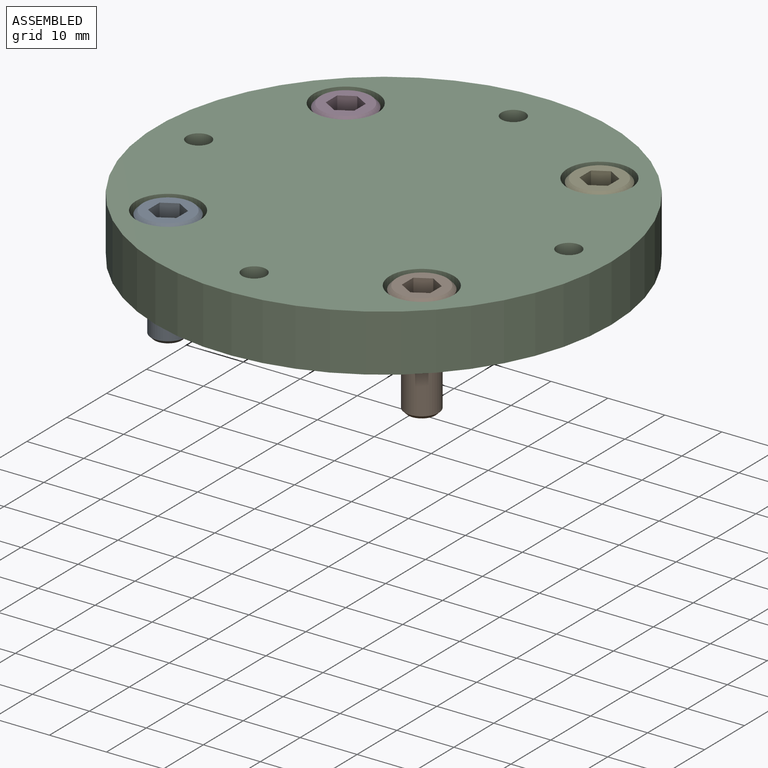
[diagram: assembled view]
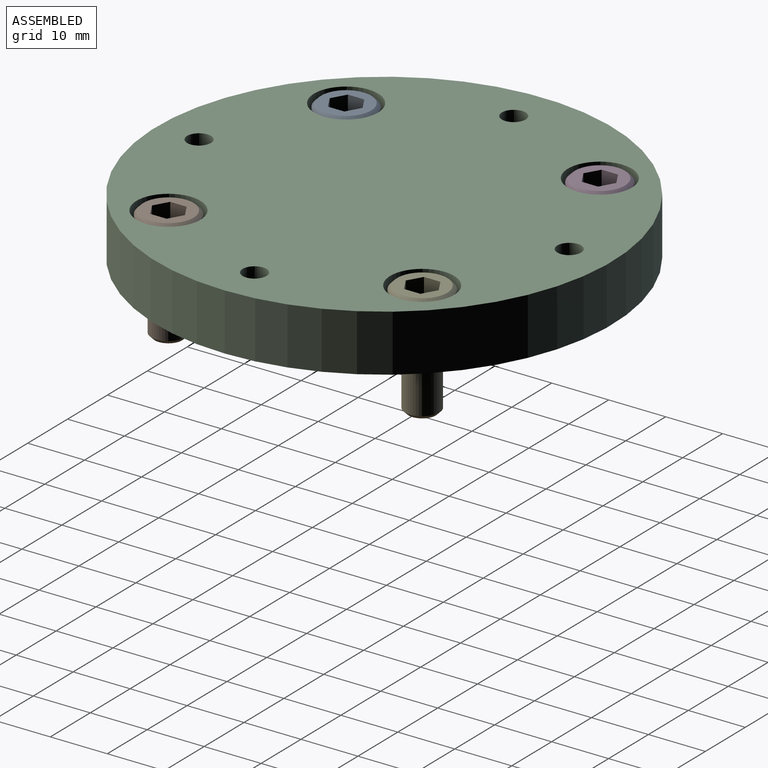
[diagram: assembled view, second angle]
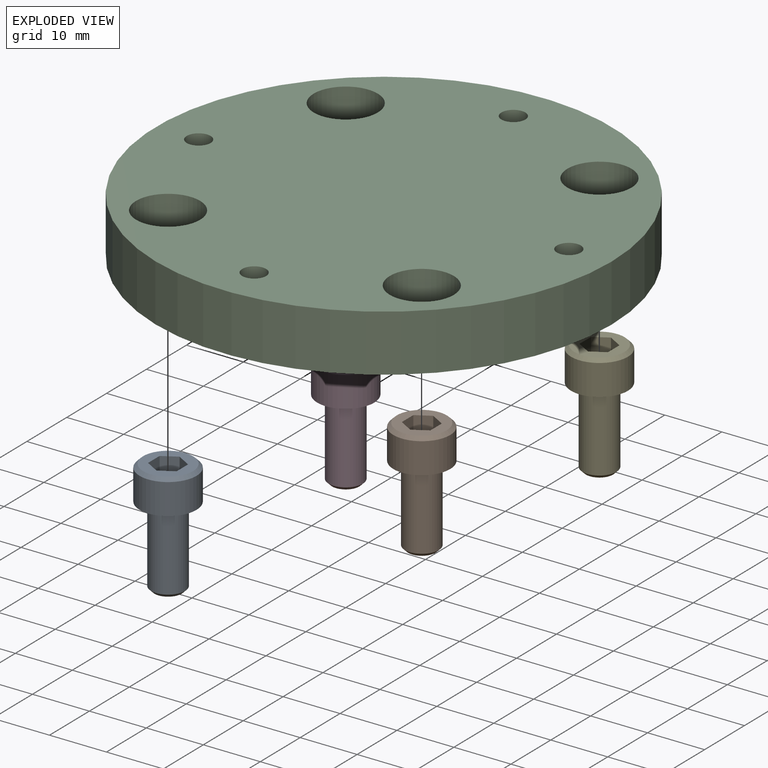
[diagram: exploded view]
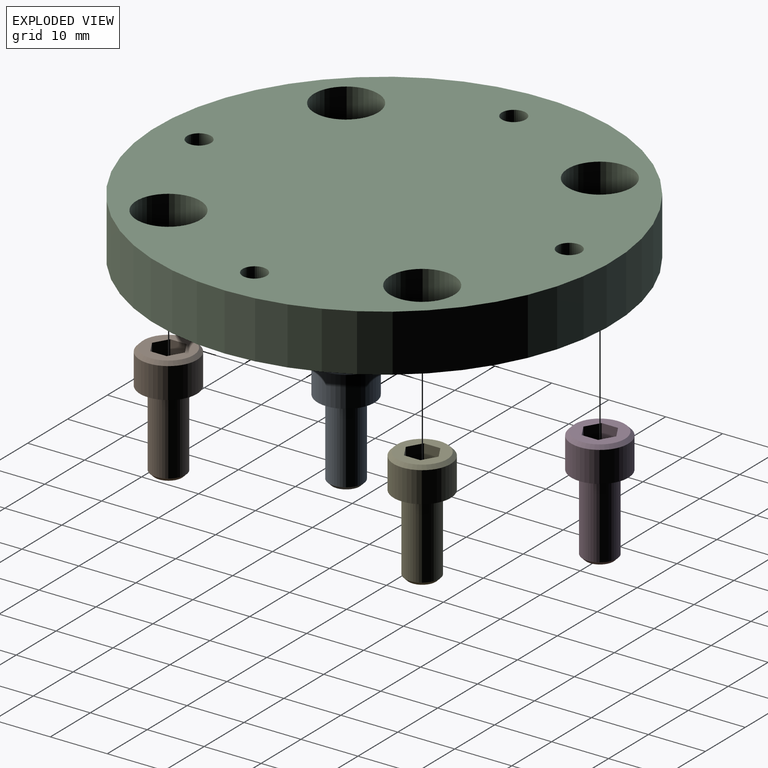
[diagram: exploded view, second angle]
ASSEMBLY  parts=5 mates=4
PART A: 20 faces, bbox 20x10x10 mm
  f0: cone r=4.4mm half-angle=45deg, axis (1,0,0), area 25.1mm2, adj f1,f13
  f1: plane 8.8x8.8mm, normal (-1,0,0), area 39.2mm2, adj f0,f2,f3,f4,f5,f6,f7
  f2: plane 3x2.5mm, normal (0,-0.87,0.5), area 8.7mm2, adj f1,f3,f4,f16,f17
  f3: plane 3x2.5mm, normal (0,-0.87,-0.5), area 8.7mm2, adj f1,f2,f7,f17,f18
  f4: plane 3x2.89mm, normal (0,0,1), area 8.7mm2, adj f1,f2,f5,f14,f16
  f5: plane 3x2.5mm, normal (0,0.87,0.5), area 8.7mm2, adj f1,f4,f6,f14,f15
  f6: plane 3x2.5mm, normal (0,0.87,-0.5), area 8.7mm2, adj f1,f5,f7,f15,f19
  f7: plane 3x2.89mm, normal (0,0,-1), area 8.7mm2, adj f1,f3,f6,f18,f19
  f8: cone r=2.5mm half-angle=75deg, axis (-1,0,0), area 20.3mm2, adj f14,f15,f16,f17,f18,f19
  f9: plane 4.77x4.77mm, normal (1,0,0), area 17.9mm2, adj f10
  f10: cone r=3mm half-angle=45deg, axis (-1,0,0), area 14.7mm2, adj f9,f11
  f11: cylinder r=3mm len=13.39mm, axis (-1,0,0), area 252.3mm2, adj f10,f12
  f12: plane 10x10mm, normal (1,0,0), area 50.3mm2, adj f11,f13
  f13: cylinder r=5mm len=10mm, axis (-1,0,0), area 169.6mm2, adj f0,f12
  f14: plane 2.17x1.25mm, normal (-1,0,0), area 0.3mm2, adj f4,f5,f8
  f15: plane 2.5x0.72mm, normal (-1,0,0), area 0.3mm2, adj f5,f6,f8
  f16: plane 2.17x1.25mm, normal (-1,0,0), area 0.3mm2, adj f2,f4,f8
  f17: plane 2.5x0.72mm, normal (-1,0,0), area 0.3mm2, adj f2,f3,f8
  f18: plane 2.17x1.25mm, normal (-1,0,0), area 0.3mm2, adj f3,f7,f8
  f19: plane 2.17x1.25mm, normal (-1,0,0), area 0.3mm2, adj f6,f7,f8
PART B: same geometry as A
PART C: 19 faces, bbox 80x80x10 mm
  f0: cylinder r=40mm len=80mm, axis (0,0,-1), area 2513.3mm2, adj f1,f2
  f1: plane 80x80mm, normal (0,0,1), area 4573.5mm2, adj f0,f5,f8,f11,f14,f15,f16,f17
  f2: plane 80x80mm, normal (0,0,-1), area 4834.3mm2, adj f0,f3,f6,f9,f12,f15,f16,f17
  f3: cylinder r=3.3mm len=6.6mm, axis (0,0,1), area 82.9mm2, adj f2,f4
  f4: plane 11.25x11.25mm, normal (0,0,1), area 65.2mm2, adj f3,f5
  f5: cylinder r=5.62mm len=11.25mm, axis (0,0,1), area 212.1mm2, adj f1,f4
  f6: cylinder r=3.3mm len=6.6mm, axis (0,0,1), area 82.9mm2, adj f2,f7
  f7: plane 11.25x11.25mm, normal (0,0,1), area 65.2mm2, adj f6,f8
  f8: cylinder r=5.62mm len=11.25mm, axis (0,0,1), area 212.1mm2, adj f1,f7
  f9: cylinder r=3.3mm len=6.6mm, axis (0,0,1), area 82.9mm2, adj f2,f10
  f10: plane 11.25x11.25mm, normal (0,0,1), area 65.2mm2, adj f9,f11
  f11: cylinder r=5.62mm len=11.25mm, axis (0,0,1), area 212.1mm2, adj f1,f10
  f12: cylinder r=3.3mm len=6.6mm, axis (0,0,1), area 82.9mm2, adj f2,f13
  f13: plane 11.25x11.25mm, normal (0,0,1), area 65.2mm2, adj f12,f14
  f14: cylinder r=5.62mm len=11.25mm, axis (0,0,1), area 212.1mm2, adj f1,f13
  f15: cylinder r=2.1mm len=10mm, axis (0,0,1), area 131.9mm2, adj f1,f2
  f16: cylinder r=2.1mm len=10mm, axis (0,0,1), area 131.9mm2, adj f1,f2
  f17: cylinder r=2.1mm len=10mm, axis (0,0,1), area 131.9mm2, adj f1,f2
  f18: cylinder r=2.1mm len=10mm, axis (0,0,1), area 131.9mm2, adj f1,f2
PART D: same geometry as A
PART E: same geometry as A
PLACE A rot(axis=(0,1,0),90deg) t=(-22.3,-22.69,-1.03)mm
PLACE B rot(axis=(0,1,0),90deg) t=(22.24,-22.69,-1.03)mm
PLACE C t=(-0.03,-0.42,-5.03)mm fixed
PLACE D rot(axis=(0,1,0),90deg) t=(-22.3,21.85,-1.03)mm
PLACE E rot(axis=(0,1,0),90deg) t=(22.24,21.85,-1.03)mm
MATE fastened C.f12 <-> E.f0  axis (0,0,1) through (22.24,21.85,-1.03)mm
MATE fastened C.f9 <-> B.f0  axis (0,0,1) through (22.24,-22.69,-1.03)mm
MATE fastened C.f6 <-> A.f0  axis (0,0,1) through (-22.3,-22.69,-1.03)mm
MATE fastened C.f3 <-> D.f0  axis (0,0,1) through (-22.3,21.85,-1.03)mm
